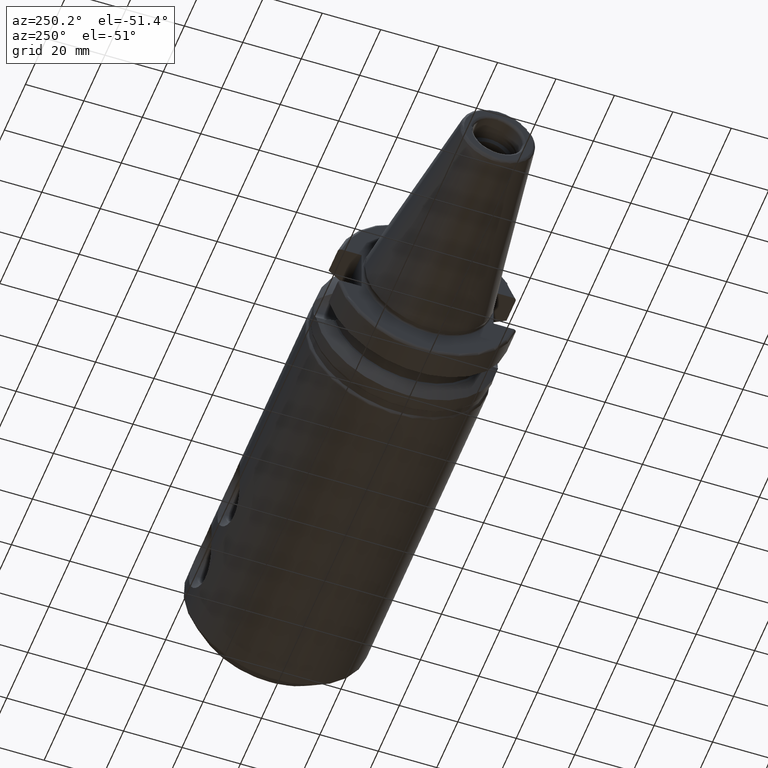
[diagram: clean part render]
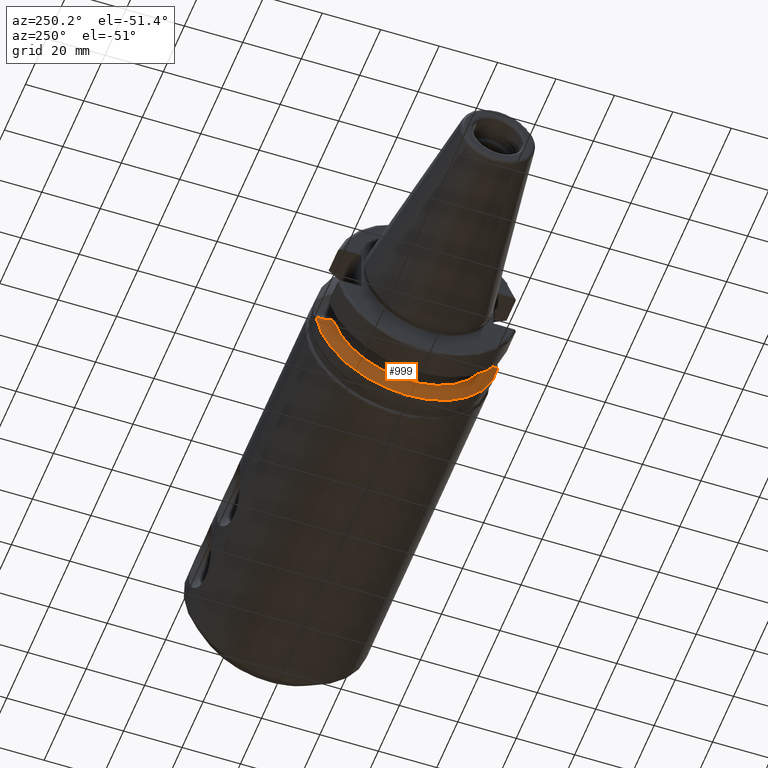
[diagram: same view with one face highlighted and labeled with its STEP entity id]
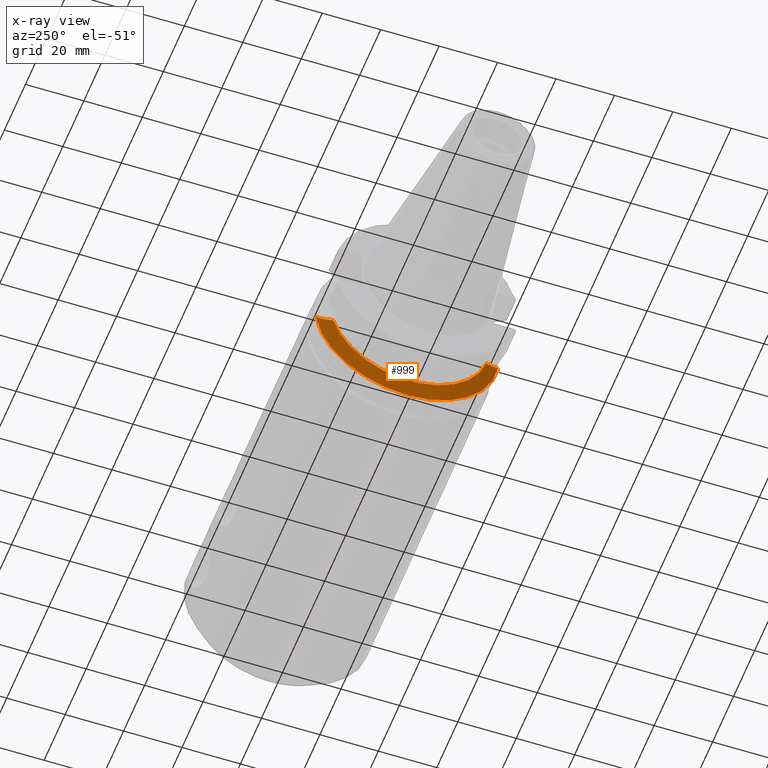
[diagram: x-ray of the same camera — body ghosted, the highlighted face saturated]
A machine part, auxiliary view. The second image highlights one B-rep face of the part: STEP entity #999.
The next image is the same camera in x-ray: the body ghosted, the highlighted face saturated — about 0% of this face is hidden behind the body in this view.
In plain terms, the highlighted conical surface has half-angle 60.125 deg.
Its self-contained STEP definition (entity closure, byte-faithful):
#26=CONICAL_SURFACE('',#1111,29.2970358274569,1.0493792127616);
#51=B_SPLINE_CURVE_WITH_KNOTS('',3,(#2215,#2216,#2217,#2218,#2219,#2220),
 .UNSPECIFIED.,.F.,.F.,(4,2,4),(3.12975744792547,3.62699288756974,3.70848737461386),
 .UNSPECIFIED.);
#56=B_SPLINE_CURVE_WITH_KNOTS('',3,(#2297,#2298,#2299,#2300,#2301,#2302),
 .UNSPECIFIED.,.F.,.F.,(4,2,4),(1.4642102789956,1.54570476603972,2.04294020568399),
 .UNSPECIFIED.);
#242=FACE_OUTER_BOUND('',#307,.T.);
#307=EDGE_LOOP('',(#816,#817,#818,#819));
#359=CIRCLE('',#1080,31.5);
#373=CIRCLE('',#1112,27.0940716549138);
#433=VERTEX_POINT('',#1756);
#434=VERTEX_POINT('',#1763);
#453=VERTEX_POINT('',#2213);
#471=VERTEX_POINT('',#2295);
#543=EDGE_CURVE('',#433,#434,#359,.T.);
#574=EDGE_CURVE('',#433,#453,#51,.T.);
#596=EDGE_CURVE('',#453,#471,#373,.T.);
#597=EDGE_CURVE('',#471,#434,#56,.T.);
#816=ORIENTED_EDGE('',*,*,#574,.T.);
#817=ORIENTED_EDGE('',*,*,#596,.T.);
#818=ORIENTED_EDGE('',*,*,#597,.T.);
#819=ORIENTED_EDGE('',*,*,#543,.F.);
#999=ADVANCED_FACE('',(#242),#26,.T.);
#1080=AXIS2_PLACEMENT_3D('',#1764,#1237,#1238);
#1111=AXIS2_PLACEMENT_3D('',#2294,#1326,#1327);
#1112=AXIS2_PLACEMENT_3D('',#2296,#1328,#1329);
#1237=DIRECTION('center_axis',(1.,0.,0.));
#1238=DIRECTION('ref_axis',(0.,0.,-1.));
#1326=DIRECTION('center_axis',(1.,0.,0.));
#1327=DIRECTION('ref_axis',(0.,1.,0.));
#1328=DIRECTION('center_axis',(1.,0.,0.));
#1329=DIRECTION('ref_axis',(0.,0.,-1.));
#1756=CARTESIAN_POINT('',(21.6309636926618,-31.1782420264945,-4.4907932637046));
#1763=CARTESIAN_POINT('',(21.6309636926618,31.1782420264945,-4.4907932637046));
#1764=CARTESIAN_POINT('Origin',(21.6309636926618,0.,0.));
#2213=CARTESIAN_POINT('',(19.1,-26.201311395455,-6.89782574439221));
#2215=CARTESIAN_POINT('Ctrl Pts',(21.6309636926618,-31.1782420264945,-4.4907932637046));
#2216=CARTESIAN_POINT('Ctrl Pts',(20.9728756148303,-29.8797957262939,-5.46983244373115));
#2217=CARTESIAN_POINT('Ctrl Pts',(20.1784155384866,-28.3157123387484,-6.18231368976925));
#2218=CARTESIAN_POINT('Ctrl Pts',(19.3406963650697,-26.6728819297428,-6.74867108656039));
#2219=CARTESIAN_POINT('Ctrl Pts',(19.2210929544554,-26.4384736933511,-6.82497151762395));
#2220=CARTESIAN_POINT('Ctrl Pts',(19.1,-26.201311395455,-6.89782574439221));
#2294=CARTESIAN_POINT('Origin',(20.3654818463309,0.,0.));
#2295=CARTESIAN_POINT('',(19.1,26.201311395455,-6.89782574439221));
#2296=CARTESIAN_POINT('Origin',(19.1,0.,0.));
#2297=CARTESIAN_POINT('Ctrl Pts',(19.1,26.201311395455,-6.89782574439221));
#2298=CARTESIAN_POINT('Ctrl Pts',(19.2210929544554,26.438473693351,-6.82497151762395));
#2299=CARTESIAN_POINT('Ctrl Pts',(19.3406963650697,26.6728819297428,-6.74867108656039));
#2300=CARTESIAN_POINT('Ctrl Pts',(20.1784155384866,28.3157123387484,-6.18231368976925));
#2301=CARTESIAN_POINT('Ctrl Pts',(20.9728756148303,29.8797957262939,-5.46983244373115));
#2302=CARTESIAN_POINT('Ctrl Pts',(21.6309636926618,31.1782420264945,-4.4907932637046));